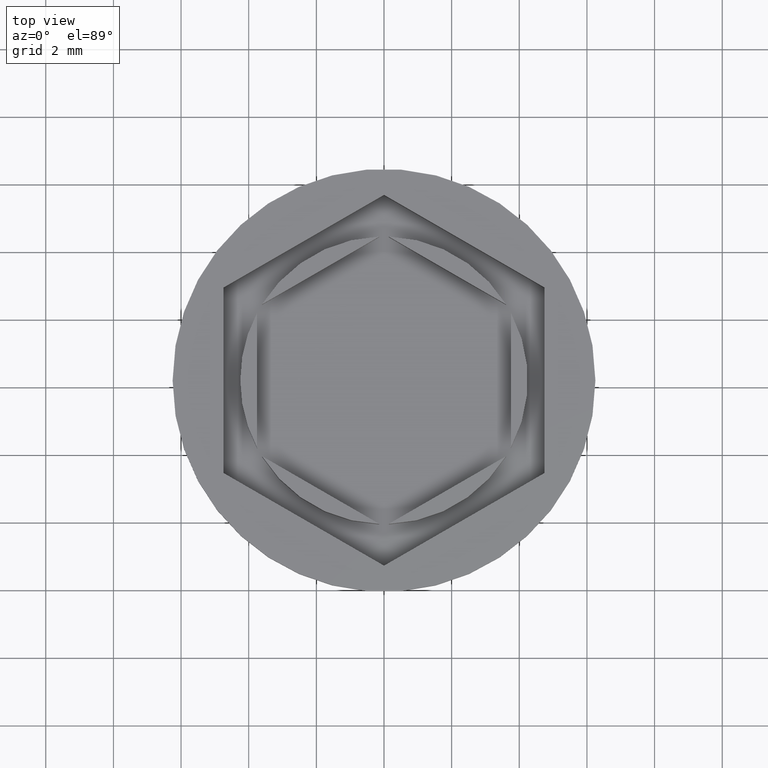
[diagram: clean part render]
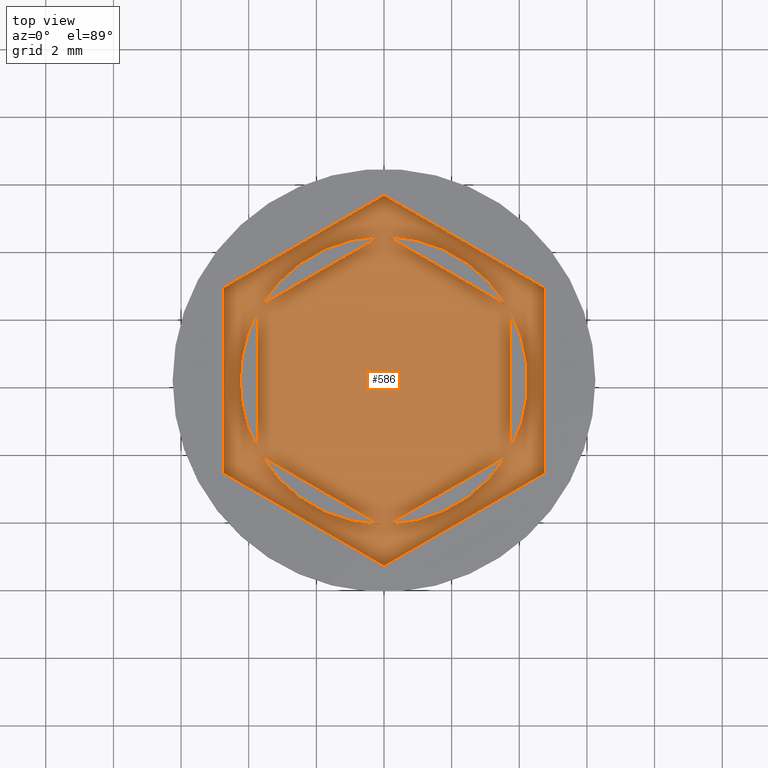
[diagram: same view with one face highlighted and labeled with its STEP entity id]
A machine part, top view. The second image highlights one B-rep face of the part: STEP entity #586.
In plain terms, the highlighted planar face has unit normal (0, 0, 1).
Its self-contained STEP definition (entity closure, byte-faithful):
#2 = VERTEX_POINT ( 'NONE', #216 ) ;
#30 = CARTESIAN_POINT ( 'NONE',  ( 3.749999999999999556, -2.000000000000001776, -1.000000000000000888 ) ) ;
#33 = DIRECTION ( 'NONE',  ( 1.000000000000000000, 0.000000000000000000, 0.000000000000000000 ) ) ;
#41 = DIRECTION ( 'NONE',  ( 0.000000000000000000, 1.000000000000000000, 0.000000000000000000 ) ) ;
#42 = LINE ( 'NONE', #1593, #1961 ) ;
#54 = ORIENTED_EDGE ( 'NONE', *, *, #1611, .F. ) ;
#70 = CARTESIAN_POINT ( 'NONE',  ( 3.749999999999999112, -2.165063509461097713, -1.000000000000000888 ) ) ;
#74 = CARTESIAN_POINT ( 'NONE',  ( -4.750000000000000888, -2.742413778650723000, -1.000000000000000000 ) ) ;
#75 = EDGE_CURVE ( 'NONE', #1122, #265, #1983, .T. ) ;
#78 = CARTESIAN_POINT ( 'NONE',  ( 0.000000000000000000, 0.000000000000000000, -1.000000000000000000 ) ) ;
#91 = VERTEX_POINT ( 'NONE', #1993 ) ;
#105 = EDGE_CURVE ( 'NONE', #310, #1496, #1191, .T. ) ;
#106 = ORIENTED_EDGE ( 'NONE', *, *, #729, .T. ) ;
#107 = CARTESIAN_POINT ( 'NONE',  ( -3.750000000000000000, -2.000000000000000444, -1.000000000000000888 ) ) ;
#154 = VERTEX_POINT ( 'NONE', #1566 ) ;
#167 = AXIS2_PLACEMENT_3D ( 'NONE', #1980, #1053, #311 ) ;
#170 = DIRECTION ( 'NONE',  ( 0.000000000000000000, 0.000000000000000000, 1.000000000000000000 ) ) ;
#177 = CARTESIAN_POINT ( 'NONE',  ( 0.000000000000000000, 4.330127018922192761, -1.000000000000000888 ) ) ;
#186 = ORIENTED_EDGE ( 'NONE', *, *, #1005, .T. ) ;
#206 = ORIENTED_EDGE ( 'NONE', *, *, #1821, .F. ) ;
#216 = CARTESIAN_POINT ( 'NONE',  ( -4.750000000000000888, -2.742413778650723000, -1.000000000000000000 ) ) ;
#218 = FACE_BOUND ( 'NONE', #233, .T. ) ;
#219 = VERTEX_POINT ( 'NONE', #107 ) ;
#227 = VECTOR ( 'NONE', #41, 1000.000000000000000 ) ;
#233 = EDGE_LOOP ( 'NONE', ( #976, #385 ) ) ;
#265 = VERTEX_POINT ( 'NONE', #708 ) ;
#267 = EDGE_CURVE ( 'NONE', #265, #219, #392, .T. ) ;
#279 = LINE ( 'NONE', #1484, #1814 ) ;
#281 = CARTESIAN_POINT ( 'NONE',  ( 4.750000000000000888, 2.742413778650723888, -1.000000000000000000 ) ) ;
#292 = CARTESIAN_POINT ( 'NONE',  ( 0.000000000000000000, 0.000000000000000000, -1.000000000000000000 ) ) ;
#296 = VECTOR ( 'NONE', #914, 1000.000000000000000 ) ;
#299 = ORIENTED_EDGE ( 'NONE', *, *, #1939, .F. ) ;
#304 = CARTESIAN_POINT ( 'NONE',  ( -3.750000000000000000, 2.165063509461096380, -1.000000000000000888 ) ) ;
#310 = VERTEX_POINT ( 'NONE', #1635 ) ;
#311 = DIRECTION ( 'NONE',  ( 1.000000000000000000, 0.000000000000000000, 0.000000000000000000 ) ) ;
#325 = VECTOR ( 'NONE', #763, 1000.000000000000000 ) ;
#330 = ORIENTED_EDGE ( 'NONE', *, *, #684, .T. ) ;
#331 = CARTESIAN_POINT ( 'NONE',  ( 3.997386383800531884E-16, -5.484827557301445999, -1.000000000000000000 ) ) ;
#332 = CARTESIAN_POINT ( 'NONE',  ( 3.750000000000000444, 1.999999999999999112, -1.000000000000000888 ) ) ;
#337 = EDGE_LOOP ( 'NONE', ( #1091, #330, #186, #1825, #1690, #106 ) ) ;
#380 = LINE ( 'NONE', #1131, #893 ) ;
#381 = CARTESIAN_POINT ( 'NONE',  ( 0.000000000000000000, 0.000000000000000000, -1.000000000000000000 ) ) ;
#385 = ORIENTED_EDGE ( 'NONE', *, *, #574, .F. ) ;
#391 = EDGE_CURVE ( 'NONE', #1798, #91, #1646, .T. ) ;
#392 = CIRCLE ( 'NONE', #1884, 4.250000000000000000 ) ;
#443 = DIRECTION ( 'NONE',  ( 0.000000000000000000, 0.000000000000000000, 1.000000000000000000 ) ) ;
#455 = CIRCLE ( 'NONE', #1926, 4.250000000000000000 ) ;
#465 = EDGE_CURVE ( 'NONE', #1703, #1634, #455, .T. ) ;
#486 = CARTESIAN_POINT ( 'NONE',  ( 0.000000000000000000, 0.000000000000000000, -1.000000000000000000 ) ) ;
#492 = DIRECTION ( 'NONE',  ( -0.8660254037844385966, -0.5000000000000000000, 0.000000000000000000 ) ) ;
#493 = FACE_OUTER_BOUND ( 'NONE', #337, .T. ) ;
#523 = FACE_BOUND ( 'NONE', #1188, .T. ) ;
#526 = EDGE_CURVE ( 'NONE', #964, #1094, #808, .T. ) ;
#535 = EDGE_CURVE ( 'NONE', #1340, #1076, #1689, .T. ) ;
#536 = ORIENTED_EDGE ( 'NONE', *, *, #1383, .F. ) ;
#543 = AXIS2_PLACEMENT_3D ( 'NONE', #292, #560, #1417 ) ;
#560 = DIRECTION ( 'NONE',  ( 0.000000000000000000, 0.000000000000000000, 1.000000000000000000 ) ) ;
#561 = EDGE_CURVE ( 'NONE', #716, #877, #792, .T. ) ;
#571 = AXIS2_PLACEMENT_3D ( 'NONE', #78, #679, #649 ) ;
#574 = EDGE_CURVE ( 'NONE', #1959, #154, #42, .T. ) ;
#582 = CARTESIAN_POINT ( 'NONE',  ( 0.000000000000000000, 0.000000000000000000, -1.000000000000000000 ) ) ;
#586 = ADVANCED_FACE ( 'NONE', ( #218, #1443, #1875, #1753, #1241, #523, #493 ), #1123, .T. ) ;
#610 = CARTESIAN_POINT ( 'NONE',  ( -4.750000000000000888, 2.742413778650723000, -1.000000000000000000 ) ) ;
#626 = DIRECTION ( 'NONE',  ( 0.8660254037844387076, 0.4999999999999999445, -0.000000000000000000 ) ) ;
#649 = DIRECTION ( 'NONE',  ( 1.000000000000000000, 0.000000000000000000, -0.000000000000000000 ) ) ;
#672 = DIRECTION ( 'NONE',  ( 0.000000000000000000, 0.000000000000000000, 1.000000000000000000 ) ) ;
#679 = DIRECTION ( 'NONE',  ( 0.000000000000000000, 0.000000000000000000, 1.000000000000000000 ) ) ;
#684 = EDGE_CURVE ( 'NONE', #91, #1330, #380, .T. ) ;
#698 = CARTESIAN_POINT ( 'NONE',  ( -0.1429491924311210305, 4.247595264191645015, -1.000000000000000888 ) ) ;
#708 = CARTESIAN_POINT ( 'NONE',  ( -4.250000000000000000, 0.000000000000000000, -1.000000000000000000 ) ) ;
#716 = VERTEX_POINT ( 'NONE', #798 ) ;
#717 = DIRECTION ( 'NONE',  ( -0.8660254037844388186, -0.4999999999999998335, 0.000000000000000000 ) ) ;
#729 = EDGE_CURVE ( 'NONE', #1496, #1798, #974, .T. ) ;
#763 = DIRECTION ( 'NONE',  ( 0.8660254037844385966, 0.5000000000000001110, 0.000000000000000000 ) ) ;
#792 = CIRCLE ( 'NONE', #1012, 4.250000000000000000 ) ;
#798 = CARTESIAN_POINT ( 'NONE',  ( -3.607050807568877637, -2.247595264191645015, -1.000000000000000888 ) ) ;
#801 = LINE ( 'NONE', #177, #860 ) ;
#808 = LINE ( 'NONE', #70, #1888 ) ;
#825 = VECTOR ( 'NONE', #1711, 1000.000000000000000 ) ;
#837 = CARTESIAN_POINT ( 'NONE',  ( -3.607050807568877637, 2.247595264191644127, -1.000000000000000888 ) ) ;
#860 = VECTOR ( 'NONE', #626, 1000.000000000000000 ) ;
#877 = VERTEX_POINT ( 'NONE', #1650 ) ;
#893 = VECTOR ( 'NONE', #492, 1000.000000000000227 ) ;
#896 = ORIENTED_EDGE ( 'NONE', *, *, #535, .F. ) ;
#914 = DIRECTION ( 'NONE',  ( 0.000000000000000000, -1.000000000000000000, 0.000000000000000000 ) ) ;
#922 = ORIENTED_EDGE ( 'NONE', *, *, #267, .F. ) ;
#952 = AXIS2_PLACEMENT_3D ( 'NONE', #381, #672, #1734 ) ;
#956 = CARTESIAN_POINT ( 'NONE',  ( 4.750000000000000888, -2.742413778650722556, -1.000000000000000000 ) ) ;
#964 = VERTEX_POINT ( 'NONE', #332 ) ;
#974 = LINE ( 'NONE', #956, #227 ) ;
#976 = ORIENTED_EDGE ( 'NONE', *, *, #1885, .F. ) ;
#1005 = EDGE_CURVE ( 'NONE', #1330, #2, #1679, .T. ) ;
#1012 = AXIS2_PLACEMENT_3D ( 'NONE', #1274, #1420, #1452 ) ;
#1034 = DIRECTION ( 'NONE',  ( -0.8660254037844387076, 0.4999999999999998890, 0.000000000000000000 ) ) ;
#1040 = ORIENTED_EDGE ( 'NONE', *, *, #526, .F. ) ;
#1045 = CARTESIAN_POINT ( 'NONE',  ( 4.750000000000000888, 2.742413778650723888, -1.000000000000000000 ) ) ;
#1050 = ORIENTED_EDGE ( 'NONE', *, *, #561, .F. ) ;
#1053 = DIRECTION ( 'NONE',  ( 0.000000000000000000, 0.000000000000000000, 1.000000000000000000 ) ) ;
#1072 = CIRCLE ( 'NONE', #167, 4.250000000000000000 ) ;
#1076 = VERTEX_POINT ( 'NONE', #1860 ) ;
#1079 = DIRECTION ( 'NONE',  ( 0.000000000000000000, 1.000000000000000000, 0.000000000000000000 ) ) ;
#1091 = ORIENTED_EDGE ( 'NONE', *, *, #391, .T. ) ;
#1094 = VERTEX_POINT ( 'NONE', #30 ) ;
#1095 = ORIENTED_EDGE ( 'NONE', *, *, #1979, .F. ) ;
#1122 = VERTEX_POINT ( 'NONE', #1700 ) ;
#1123 = PLANE ( 'NONE',  #571 ) ;
#1131 = CARTESIAN_POINT ( 'NONE',  ( 0.000000000000000000, 5.484827557301445999, -1.000000000000000000 ) ) ;
#1151 = EDGE_CURVE ( 'NONE', #2, #310, #1872, .T. ) ;
#1188 = EDGE_LOOP ( 'NONE', ( #1617, #299 ) ) ;
#1191 = LINE ( 'NONE', #331, #325 ) ;
#1241 = FACE_BOUND ( 'NONE', #1312, .T. ) ;
#1274 = CARTESIAN_POINT ( 'NONE',  ( 0.000000000000000000, 0.000000000000000000, -1.000000000000000000 ) ) ;
#1279 = CARTESIAN_POINT ( 'NONE',  ( 0.1429491924311227513, -4.247595264191645903, -1.000000000000000888 ) ) ;
#1312 = EDGE_LOOP ( 'NONE', ( #1370, #206, #922 ) ) ;
#1313 = DIRECTION ( 'NONE',  ( 1.000000000000000000, 0.000000000000000000, 0.000000000000000000 ) ) ;
#1330 = VERTEX_POINT ( 'NONE', #1907 ) ;
#1340 = VERTEX_POINT ( 'NONE', #1279 ) ;
#1352 = EDGE_LOOP ( 'NONE', ( #54, #1040 ) ) ;
#1370 = ORIENTED_EDGE ( 'NONE', *, *, #75, .F. ) ;
#1383 = EDGE_CURVE ( 'NONE', #1076, #1340, #279, .T. ) ;
#1417 = DIRECTION ( 'NONE',  ( 1.000000000000000000, 0.000000000000000000, 0.000000000000000000 ) ) ;
#1420 = DIRECTION ( 'NONE',  ( 0.000000000000000000, 0.000000000000000000, 1.000000000000000000 ) ) ;
#1430 = DIRECTION ( 'NONE',  ( -3.004629197474318063E-16, -1.000000000000000000, 0.000000000000000000 ) ) ;
#1443 = FACE_BOUND ( 'NONE', #1352, .T. ) ;
#1452 = DIRECTION ( 'NONE',  ( 1.000000000000000000, 0.000000000000000000, 0.000000000000000000 ) ) ;
#1478 = CARTESIAN_POINT ( 'NONE',  ( 0.000000000000000000, 0.000000000000000000, -1.000000000000000000 ) ) ;
#1484 = CARTESIAN_POINT ( 'NONE',  ( -6.505213034913026604E-16, -4.330127018922193649, -1.000000000000000888 ) ) ;
#1496 = VERTEX_POINT ( 'NONE', #1797 ) ;
#1530 = LINE ( 'NONE', #304, #1784 ) ;
#1556 = CIRCLE ( 'NONE', #543, 4.250000000000000000 ) ;
#1566 = CARTESIAN_POINT ( 'NONE',  ( 3.607050807568877193, 2.247595264191646791, -1.000000000000000888 ) ) ;
#1591 = VECTOR ( 'NONE', #1034, 1000.000000000000114 ) ;
#1593 = CARTESIAN_POINT ( 'NONE',  ( 3.750000000000000444, 2.165063509461096825, -1.000000000000000888 ) ) ;
#1611 = EDGE_CURVE ( 'NONE', #1094, #964, #1556, .T. ) ;
#1617 = ORIENTED_EDGE ( 'NONE', *, *, #465, .F. ) ;
#1634 = VERTEX_POINT ( 'NONE', #837 ) ;
#1635 = CARTESIAN_POINT ( 'NONE',  ( 3.997386383800531884E-16, -5.484827557301445999, -1.000000000000000000 ) ) ;
#1646 = LINE ( 'NONE', #281, #1591 ) ;
#1650 = CARTESIAN_POINT ( 'NONE',  ( -0.1429491924311236117, -4.247595264191645015, -1.000000000000000888 ) ) ;
#1666 = AXIS2_PLACEMENT_3D ( 'NONE', #582, #443, #1827 ) ;
#1679 = LINE ( 'NONE', #610, #296 ) ;
#1689 = CIRCLE ( 'NONE', #952, 4.250000000000000000 ) ;
#1690 = ORIENTED_EDGE ( 'NONE', *, *, #105, .T. ) ;
#1700 = CARTESIAN_POINT ( 'NONE',  ( -3.750000000000000000, 2.000000000000000444, -1.000000000000000888 ) ) ;
#1703 = VERTEX_POINT ( 'NONE', #698 ) ;
#1704 = CARTESIAN_POINT ( 'NONE',  ( -3.750000000000000000, -2.165063509461096825, -1.000000000000000888 ) ) ;
#1711 = DIRECTION ( 'NONE',  ( -0.8660254037844385966, 0.5000000000000001110, 0.000000000000000000 ) ) ;
#1717 = DIRECTION ( 'NONE',  ( 0.8660254037844385966, -0.5000000000000000000, 0.000000000000000000 ) ) ;
#1734 = DIRECTION ( 'NONE',  ( 1.000000000000000000, 0.000000000000000000, 0.000000000000000000 ) ) ;
#1751 = VECTOR ( 'NONE', #1717, 1000.000000000000227 ) ;
#1753 = FACE_BOUND ( 'NONE', #1815, .T. ) ;
#1784 = VECTOR ( 'NONE', #1079, 1000.000000000000000 ) ;
#1797 = CARTESIAN_POINT ( 'NONE',  ( 4.750000000000000888, -2.742413778650722556, -1.000000000000000000 ) ) ;
#1798 = VERTEX_POINT ( 'NONE', #1045 ) ;
#1814 = VECTOR ( 'NONE', #717, 999.9999999999998863 ) ;
#1815 = EDGE_LOOP ( 'NONE', ( #1050, #1095 ) ) ;
#1821 = EDGE_CURVE ( 'NONE', #219, #1122, #1530, .T. ) ;
#1825 = ORIENTED_EDGE ( 'NONE', *, *, #1151, .T. ) ;
#1827 = DIRECTION ( 'NONE',  ( 1.000000000000000000, 0.000000000000000000, 0.000000000000000000 ) ) ;
#1840 = CARTESIAN_POINT ( 'NONE',  ( 0.1429491924311221129, 4.247595264191645903, -1.000000000000000888 ) ) ;
#1841 = EDGE_LOOP ( 'NONE', ( #896, #536 ) ) ;
#1860 = CARTESIAN_POINT ( 'NONE',  ( 3.607050807568876749, -2.247595264191647679, -1.000000000000000888 ) ) ;
#1872 = LINE ( 'NONE', #74, #1751 ) ;
#1875 = FACE_BOUND ( 'NONE', #1841, .T. ) ;
#1877 = LINE ( 'NONE', #1704, #825 ) ;
#1884 = AXIS2_PLACEMENT_3D ( 'NONE', #1478, #1946, #1313 ) ;
#1885 = EDGE_CURVE ( 'NONE', #154, #1959, #1072, .T. ) ;
#1888 = VECTOR ( 'NONE', #1430, 1000.000000000000000 ) ;
#1902 = DIRECTION ( 'NONE',  ( 0.8660254037844388186, -0.4999999999999998335, 0.000000000000000000 ) ) ;
#1907 = CARTESIAN_POINT ( 'NONE',  ( -4.750000000000000888, 2.742413778650723000, -1.000000000000000000 ) ) ;
#1926 = AXIS2_PLACEMENT_3D ( 'NONE', #486, #170, #33 ) ;
#1939 = EDGE_CURVE ( 'NONE', #1634, #1703, #801, .T. ) ;
#1946 = DIRECTION ( 'NONE',  ( 0.000000000000000000, 0.000000000000000000, 1.000000000000000000 ) ) ;
#1959 = VERTEX_POINT ( 'NONE', #1840 ) ;
#1961 = VECTOR ( 'NONE', #1902, 999.9999999999998863 ) ;
#1979 = EDGE_CURVE ( 'NONE', #877, #716, #1877, .T. ) ;
#1980 = CARTESIAN_POINT ( 'NONE',  ( 0.000000000000000000, 0.000000000000000000, -1.000000000000000000 ) ) ;
#1983 = CIRCLE ( 'NONE', #1666, 4.250000000000000000 ) ;
#1993 = CARTESIAN_POINT ( 'NONE',  ( 0.000000000000000000, 5.484827557301445999, -1.000000000000000000 ) ) ;